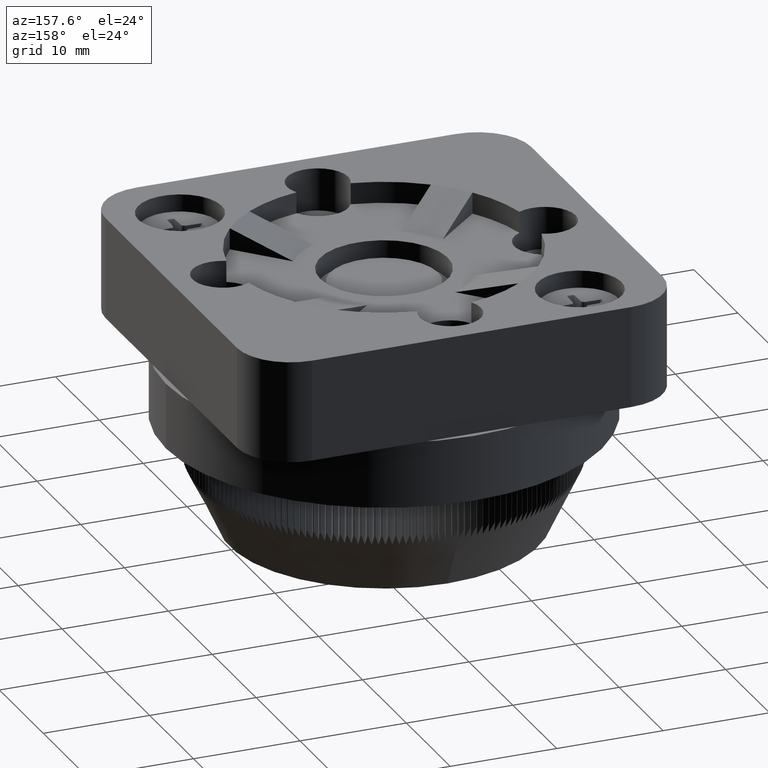
[diagram: clean part render]
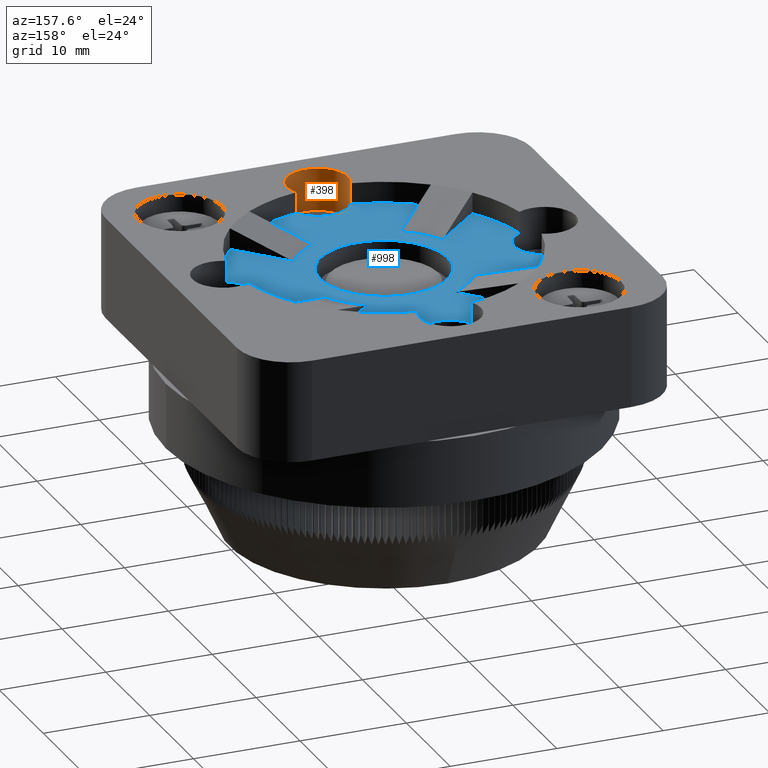
[diagram: same view with the hole feature highlighted: cylindrical wall and planar end face, labeled with their STEP entity ids]
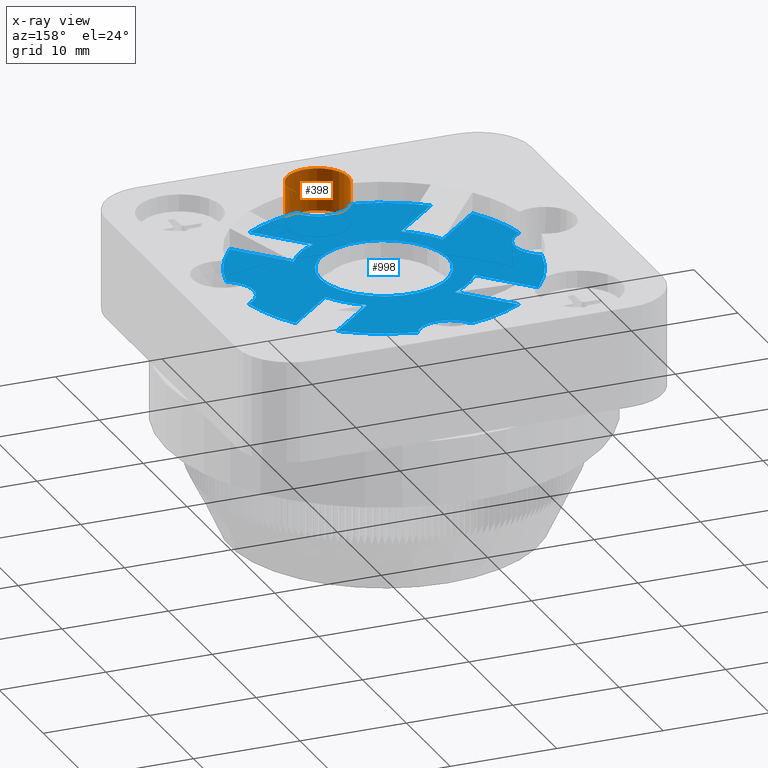
[diagram: x-ray of the same camera — body ghosted, the hole faces saturated]
A machine part, auxiliary view. The highlighted faces form one hole feature of diameter 5.75 mm: the cylindrical wall (entity #398, orange) and its adjacent planar end face (entity #998, blue) — they share a circular edge in the B-rep.
The next image is the same camera in x-ray (body ghosted, the hole faces saturated) — the bore reads through the body.
Wall:
#346=CARTESIAN_POINT('',(-3.853483861351105,-23.838519538058748,7.500000000000000));
#347=DIRECTION('',(0.0,0.0,-1.0));
#348=DIRECTION('',(1.0,0.0,0.0));
#349=AXIS2_PLACEMENT_3D('',#346,#347,#348);
#350=CYLINDRICAL_SURFACE('',#349,2.875000000000000);
#351=CARTESIAN_POINT('',(-1.318569545624718,-22.482114579381054,7.500000000000000));
#352=VERTEX_POINT('',#351);
#353=CARTESIAN_POINT('',(-1.318569545624718,-22.482114579381054,9.500000000000000));
#354=VERTEX_POINT('',#353);
#355=CARTESIAN_POINT('',(-1.318569545624718,-22.482114579381054,7.500000000000000));
#356=DIRECTION('',(0.0,0.0,1.0));
#357=VECTOR('',#356,2.0);
#358=LINE('',#355,#357);
#359=EDGE_CURVE('',#352,#354,#358,.T.);
#360=ORIENTED_EDGE('',*,*,#359,.F.);
#361=CARTESIAN_POINT('',(-6.388398177077493,-22.482114579381054,7.500000000000000));
#362=VERTEX_POINT('',#361);
#363=CARTESIAN_POINT('',(-3.853483861351105,-23.838519538058748,7.500000000000001));
#364=DIRECTION('',(0.0,0.0,-1.0));
#365=DIRECTION('',(1.0,0.0,0.0));
#366=AXIS2_PLACEMENT_3D('',#363,#364,#365);
#367=CIRCLE('',#366,2.875000000000000);
#368=EDGE_CURVE('',#362,#352,#367,.T.);
#369=ORIENTED_EDGE('',*,*,#368,.F.);
#370=CARTESIAN_POINT('',(-6.388398177077493,-22.482114579381054,9.500000000000000));
#371=VERTEX_POINT('',#370);
#372=CARTESIAN_POINT('',(-6.388398177077493,-22.482114579381054,9.500000000000000));
#373=DIRECTION('',(0.0,0.0,-1.0));
#374=VECTOR('',#373,2.0);
#375=LINE('',#372,#374);
#376=EDGE_CURVE('',#371,#362,#375,.T.);
#377=ORIENTED_EDGE('',*,*,#376,.F.);
#378=CARTESIAN_POINT('',(-3.853483861351105,-23.838519538058748,9.500000000000000));
#379=DIRECTION('',(0.0,0.0,-1.0));
#380=DIRECTION('',(1.0,0.0,0.0));
#381=AXIS2_PLACEMENT_3D('',#378,#379,#380);
#382=CIRCLE('',#381,2.875000000000000);
#383=EDGE_CURVE('',#354,#371,#382,.T.);
#384=ORIENTED_EDGE('',*,*,#383,.F.);
#385=EDGE_LOOP('',(#360,#369,#377,#384));
#386=FACE_OUTER_BOUND('',#385,.T.);
#387=CARTESIAN_POINT('',(-0.978483861351104,-23.838519538058748,5.500000000000000));
#388=VERTEX_POINT('',#387);
#389=CARTESIAN_POINT('',(-3.853483861351105,-23.838519538058748,5.500000000000000));
#390=DIRECTION('',(0.0,0.0,-1.0));
#391=DIRECTION('',(1.0,0.0,0.0));
#392=AXIS2_PLACEMENT_3D('',#389,#390,#391);
#393=CIRCLE('',#392,2.875000000000000);
#394=EDGE_CURVE('',#388,#388,#393,.T.);
#395=ORIENTED_EDGE('',*,*,#394,.T.);
#396=EDGE_LOOP('',(#395));
#397=FACE_BOUND('',#396,.T.);
#398=ADVANCED_FACE('',(#386,#397),#350,.F.);
End face:
#351=CARTESIAN_POINT('',(-1.318569545624718,-22.482114579381054,7.500000000000000));
#352=VERTEX_POINT('',#351);
#361=CARTESIAN_POINT('',(-6.388398177077493,-22.482114579381054,7.500000000000000));
#362=VERTEX_POINT('',#361);
#363=CARTESIAN_POINT('',(-3.853483861351105,-23.838519538058748,7.500000000000001));
#364=DIRECTION('',(0.0,0.0,-1.0));
#365=DIRECTION('',(1.0,0.0,0.0));
#366=AXIS2_PLACEMENT_3D('',#363,#364,#365);
#367=CIRCLE('',#366,2.875000000000000);
#368=EDGE_CURVE('',#362,#352,#367,.T.);
#632=CARTESIAN_POINT('',(-12.719196392852494,-19.548607969113618,7.500000000000001));
#633=VERTEX_POINT('',#632);
#634=CARTESIAN_POINT('',(-3.853483861351104,-8.713519538058748,7.500000000000000));
#635=DIRECTION('',(0.0,0.0,1.0));
#636=DIRECTION('',(1.0,0.0,0.0));
#637=AXIS2_PLACEMENT_3D('',#634,#635,#636);
#638=CIRCLE('',#637,13.999999999999996);
#639=EDGE_CURVE('',#633,#362,#638,.T.);
#677=CARTESIAN_POINT('',(-6.388398177077493,5.055075503263562,7.500000000000000));
#678=VERTEX_POINT('',#677);
#685=CARTESIAN_POINT('',(-1.318569545624718,5.055075503263562,7.500000000000000));
#686=VERTEX_POINT('',#685);
#687=CARTESIAN_POINT('',(-3.853483861351105,6.411480461941252,7.500000000000001));
#688=DIRECTION('',(0.0,0.0,-1.0));
#689=DIRECTION('',(1.0,0.0,0.0));
#690=AXIS2_PLACEMENT_3D('',#687,#688,#689);
#691=CIRCLE('',#690,2.875000000000000);
#692=EDGE_CURVE('',#686,#678,#691,.T.);
#730=CARTESIAN_POINT('',(5.012228670150289,2.121568892996119,7.500000000000000));
#731=VERTEX_POINT('',#730);
#732=CARTESIAN_POINT('',(-3.853483861351104,-8.713519538058748,7.500000000000000));
#733=DIRECTION('',(0.0,0.0,1.0));
#734=DIRECTION('',(1.0,0.0,0.0));
#735=AXIS2_PLACEMENT_3D('',#732,#733,#734);
#736=CIRCLE('',#735,13.999999999999996);
#737=EDGE_CURVE('',#731,#686,#736,.T.);
#756=CARTESIAN_POINT('',(-11.739243858508143,2.854314713314225,7.500000000000000));
#757=VERTEX_POINT('',#756);
#764=CARTESIAN_POINT('',(-3.853483861351104,-8.713519538058748,7.500000000000000));
#765=DIRECTION('',(0.0,0.0,1.0));
#766=DIRECTION('',(1.0,0.0,0.0));
#767=AXIS2_PLACEMENT_3D('',#764,#765,#766);
#768=CIRCLE('',#767,13.999999999999996);
#769=EDGE_CURVE('',#678,#757,#768,.T.);
#790=CARTESIAN_POINT('',(-17.622078902673412,-6.178605222332361,7.500000000000000));
#791=VERTEX_POINT('',#790);
#799=CARTESIAN_POINT('',(-17.622078902673412,-11.248433853785135,7.500000000000000));
#800=VERTEX_POINT('',#799);
#807=CARTESIAN_POINT('',(-18.978483861351101,-8.713519538058748,7.500000000000001));
#808=DIRECTION('',(0.0,0.0,-1.0));
#809=DIRECTION('',(-1.0,0.0,0.0));
#810=AXIS2_PLACEMENT_3D('',#807,#808,#809);
#811=CIRCLE('',#810,2.875000000000000);
#812=EDGE_CURVE('',#791,#800,#811,.T.);
#826=CARTESIAN_POINT('',(-3.853483861351104,-4.713519538058750,7.500000000000001));
#827=DIRECTION('',(0.0,0.0,-1.0));
#828=DIRECTION('',(-1.0,0.0,0.0));
#829=AXIS2_PLACEMENT_3D('',#826,#827,#828);
#830=PLANE('',#829);
#831=ORIENTED_EDGE('',*,*,#368,.T.);
#832=CARTESIAN_POINT('',(4.032276135805936,-20.281353789431723,7.500000000000001));
#833=VERTEX_POINT('',#832);
#834=CARTESIAN_POINT('',(-3.853483861351104,-8.713519538058748,7.500000000000000));
#835=DIRECTION('',(0.0,0.0,1.0));
#836=DIRECTION('',(1.0,0.0,0.0));
#837=AXIS2_PLACEMENT_3D('',#834,#835,#836);
#838=CIRCLE('',#837,13.999999999999996);
#839=EDGE_CURVE('',#352,#833,#838,.T.);
#840=ORIENTED_EDGE('',*,*,#839,.T.);
#841=CARTESIAN_POINT('',(-0.095511868056037,-15.775930351485686,7.500000000000000));
#842=VERTEX_POINT('',#841);
#843=CARTESIAN_POINT('',(4.032276135805936,-20.281353789431723,7.500000000000001));
#844=DIRECTION('',(-0.675530429967896,0.737332108474458,-1.453543E-016));
#845=VECTOR('',#844,6.110439768136193);
#846=LINE('',#843,#845);
#847=EDGE_CURVE('',#833,#842,#846,.T.);
#848=ORIENTED_EDGE('',*,*,#847,.T.);
#849=CARTESIAN_POINT('',(2.853816565841801,-13.073808631614103,7.500000000000000));
#850=VERTEX_POINT('',#849);
#851=CARTESIAN_POINT('',(-3.853483861351104,-8.713519538058748,7.500000000000002));
#852=DIRECTION('',(0.0,0.0,-1.0));
#853=DIRECTION('',(0.0,1.0,0.0));
#854=AXIS2_PLACEMENT_3D('',#851,#852,#853);
#855=CIRCLE('',#854,7.999999999999997);
#856=EDGE_CURVE('',#850,#842,#855,.T.);
#857=ORIENTED_EDGE('',*,*,#856,.F.);
#858=CARTESIAN_POINT('',(6.981604569703768,-17.579232069560135,7.499999999999999));
#859=VERTEX_POINT('',#858);
#860=CARTESIAN_POINT('',(2.853816565841801,-13.073808631614103,7.500000000000000));
#861=DIRECTION('',(0.675530429967896,-0.737332108474458,-1.453543E-016));
#862=VECTOR('',#861,6.110439768136186);
#863=LINE('',#860,#862);
#864=EDGE_CURVE('',#850,#859,#863,.T.);
#865=ORIENTED_EDGE('',*,*,#864,.T.);
#866=CARTESIAN_POINT('',(9.915111179971206,-11.248433853785135,7.500000000000000));
#867=VERTEX_POINT('',#866);
#868=CARTESIAN_POINT('',(-3.853483861351104,-8.713519538058748,7.500000000000000));
#869=DIRECTION('',(0.0,0.0,1.0));
#870=DIRECTION('',(1.0,0.0,0.0));
#871=AXIS2_PLACEMENT_3D('',#868,#869,#870);
#872=CIRCLE('',#871,13.999999999999996);
#873=EDGE_CURVE('',#859,#867,#872,.T.);
#874=ORIENTED_EDGE('',*,*,#873,.T.);
#875=CARTESIAN_POINT('',(9.915111179971206,-6.178605222332361,7.500000000000000));
#876=VERTEX_POINT('',#875);
#877=CARTESIAN_POINT('',(11.271516138648895,-8.713519538058748,7.500000000000001));
#878=DIRECTION('',(0.0,0.0,-1.0));
#879=DIRECTION('',(1.0,0.0,0.0));
#880=AXIS2_PLACEMENT_3D('',#877,#878,#879);
#881=CIRCLE('',#880,2.875000000000000);
#882=EDGE_CURVE('',#867,#876,#881,.T.);
#883=ORIENTED_EDGE('',*,*,#882,.T.);
#884=CARTESIAN_POINT('',(7.714350390021871,-0.827759540901713,7.499999999999999));
#885=VERTEX_POINT('',#884);
#886=CARTESIAN_POINT('',(-3.853483861351104,-8.713519538058748,7.500000000000000));
#887=DIRECTION('',(0.0,0.0,1.0));
#888=DIRECTION('',(1.0,0.0,0.0));
#889=AXIS2_PLACEMENT_3D('',#886,#887,#888);
#890=CIRCLE('',#889,13.999999999999996);
#891=EDGE_CURVE('',#876,#885,#890,.T.);
#892=ORIENTED_EDGE('',*,*,#891,.T.);
#893=CARTESIAN_POINT('',(3.208926952075840,-4.955547544763678,7.500000000000000));
#894=VERTEX_POINT('',#893);
#895=CARTESIAN_POINT('',(7.714350390021871,-0.827759540901713,7.499999999999999));
#896=DIRECTION('',(-0.737332108474458,-0.675530429967896,1.453543E-016));
#897=VECTOR('',#896,6.110439768136184);
#898=LINE('',#895,#897);
#899=EDGE_CURVE('',#885,#894,#898,.T.);
#900=ORIENTED_EDGE('',*,*,#899,.T.);
#901=CARTESIAN_POINT('',(0.506805232204260,-2.006219110865843,7.500000000000000));
#902=VERTEX_POINT('',#901);
#903=CARTESIAN_POINT('',(-3.853483861351104,-8.713519538058748,7.500000000000002));
#904=DIRECTION('',(0.0,0.0,-1.0));
#905=DIRECTION('',(0.0,1.0,0.0));
#906=AXIS2_PLACEMENT_3D('',#903,#904,#905);
#907=CIRCLE('',#906,7.999999999999997);
#908=EDGE_CURVE('',#902,#894,#907,.T.);
#909=ORIENTED_EDGE('',*,*,#908,.F.);
#910=CARTESIAN_POINT('',(0.506805232204260,-2.006219110865843,7.500000000000000));
#911=DIRECTION('',(0.737332108474458,0.675530429967896,0.0));
#912=VECTOR('',#911,6.110439768136180);
#913=LINE('',#910,#912);
#914=EDGE_CURVE('',#902,#731,#913,.T.);
#915=ORIENTED_EDGE('',*,*,#914,.T.);
#916=ORIENTED_EDGE('',*,*,#737,.T.);
#917=ORIENTED_EDGE('',*,*,#692,.T.);
#918=ORIENTED_EDGE('',*,*,#769,.T.);
#919=CARTESIAN_POINT('',(-7.611455854646179,-1.651108724631802,7.500000000000000));
#920=VERTEX_POINT('',#919);
#921=CARTESIAN_POINT('',(-11.739243858508143,2.854314713314225,7.500000000000000));
#922=DIRECTION('',(0.675530429967896,-0.737332108474458,0.0));
#923=VECTOR('',#922,6.110439768136180);
#924=LINE('',#921,#923);
#925=EDGE_CURVE('',#757,#920,#924,.T.);
#926=ORIENTED_EDGE('',*,*,#925,.T.);
#927=CARTESIAN_POINT('',(-10.560784288544012,-4.353230444503391,7.499999999999999));
#928=VERTEX_POINT('',#927);
#929=CARTESIAN_POINT('',(-3.853483861351104,-8.713519538058748,7.500000000000002));
#930=DIRECTION('',(0.0,0.0,-1.0));
#931=DIRECTION('',(0.0,1.0,0.0));
#932=AXIS2_PLACEMENT_3D('',#929,#930,#931);
#933=CIRCLE('',#932,7.999999999999997);
#934=EDGE_CURVE('',#928,#920,#933,.T.);
#935=ORIENTED_EDGE('',*,*,#934,.F.);
#936=CARTESIAN_POINT('',(-14.688572292405977,0.152192993442641,7.500000000000000));
#937=VERTEX_POINT('',#936);
#938=CARTESIAN_POINT('',(-10.560784288544012,-4.353230444503391,7.499999999999999));
#939=DIRECTION('',(-0.675530429967896,0.737332108474458,1.453543E-016));
#940=VECTOR('',#939,6.110439768136185);
#941=LINE('',#938,#940);
#942=EDGE_CURVE('',#928,#937,#941,.T.);
#943=ORIENTED_EDGE('',*,*,#942,.T.);
#944=CARTESIAN_POINT('',(-3.853483861351104,-8.713519538058748,7.500000000000000));
#945=DIRECTION('',(0.0,0.0,1.0));
#946=DIRECTION('',(1.0,0.0,0.0));
#947=AXIS2_PLACEMENT_3D('',#944,#945,#946);
#948=CIRCLE('',#947,13.999999999999996);
#949=EDGE_CURVE('',#937,#791,#948,.T.);
#950=ORIENTED_EDGE('',*,*,#949,.T.);
#951=ORIENTED_EDGE('',*,*,#812,.T.);
#952=CARTESIAN_POINT('',(-15.421318112724078,-16.599279535215782,7.500000000000000));
#953=VERTEX_POINT('',#952);
#954=CARTESIAN_POINT('',(-3.853483861351104,-8.713519538058748,7.500000000000000));
#955=DIRECTION('',(0.0,0.0,1.0));
#956=DIRECTION('',(1.0,0.0,0.0));
#957=AXIS2_PLACEMENT_3D('',#954,#955,#956);
#958=CIRCLE('',#957,13.999999999999996);
#959=EDGE_CURVE('',#800,#953,#958,.T.);
#960=ORIENTED_EDGE('',*,*,#959,.T.);
#961=CARTESIAN_POINT('',(-10.915894674778045,-12.471491531353820,7.500000000000000));
#962=VERTEX_POINT('',#961);
#963=CARTESIAN_POINT('',(-15.421318112724078,-16.599279535215782,7.500000000000000));
#964=DIRECTION('',(0.737332108474459,0.675530429967895,0.0));
#965=VECTOR('',#964,6.110439768136184);
#966=LINE('',#963,#965);
#967=EDGE_CURVE('',#953,#962,#966,.T.);
#968=ORIENTED_EDGE('',*,*,#967,.T.);
#969=CARTESIAN_POINT('',(-8.213772954906458,-15.420819965251651,7.500000000000000));
#970=VERTEX_POINT('',#969);
#971=CARTESIAN_POINT('',(-3.853483861351104,-8.713519538058748,7.500000000000002));
#972=DIRECTION('',(0.0,0.0,-1.0));
#973=DIRECTION('',(0.0,1.0,0.0));
#974=AXIS2_PLACEMENT_3D('',#971,#972,#973);
#975=CIRCLE('',#974,7.999999999999997);
#976=EDGE_CURVE('',#970,#962,#975,.T.);
#977=ORIENTED_EDGE('',*,*,#976,.F.);
#978=CARTESIAN_POINT('',(-8.213772954906458,-15.420819965251651,7.500000000000000));
#979=DIRECTION('',(-0.737332108474458,-0.675530429967896,1.453543E-016));
#980=VECTOR('',#979,6.110439768136188);
#981=LINE('',#978,#980);
#982=EDGE_CURVE('',#970,#633,#981,.T.);
#983=ORIENTED_EDGE('',*,*,#982,.T.);
#984=ORIENTED_EDGE('',*,*,#639,.T.);
#985=EDGE_LOOP('',(#831,#840,#848,#857,#865,#874,#883,#892,#900,#909,#915,#916,#917,#918,#926,#935,#943,#950,#951,#960,#968,#977,#983,#984));
#986=FACE_OUTER_BOUND('',#985,.T.);
#987=CARTESIAN_POINT('',(0.570508789495641,-4.660336958251368,7.500000000000001));
#988=VERTEX_POINT('',#987);
#989=CARTESIAN_POINT('',(-3.853483861351104,-8.713519538058748,7.500000000000002));
#990=DIRECTION('',(-1.382478E-016,-1.266602E-016,-1.000000000000000));
#991=DIRECTION('',(-0.737332108474458,-0.675530429967896,1.874974E-016));
#992=AXIS2_PLACEMENT_3D('',#989,#990,#991);
#993=CIRCLE('',#992,6.000000000000001);
#994=EDGE_CURVE('',#988,#988,#993,.T.);
#995=ORIENTED_EDGE('',*,*,#994,.T.);
#996=EDGE_LOOP('',(#995));
#997=FACE_BOUND('',#996,.T.);
#998=ADVANCED_FACE('',(#986,#997),#830,.F.);